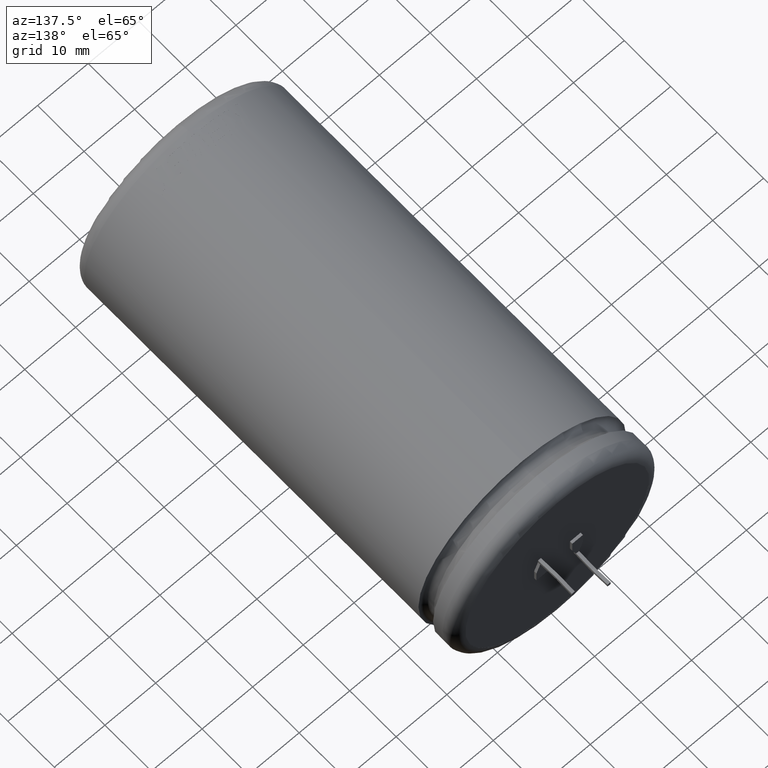
[diagram: clean part render]
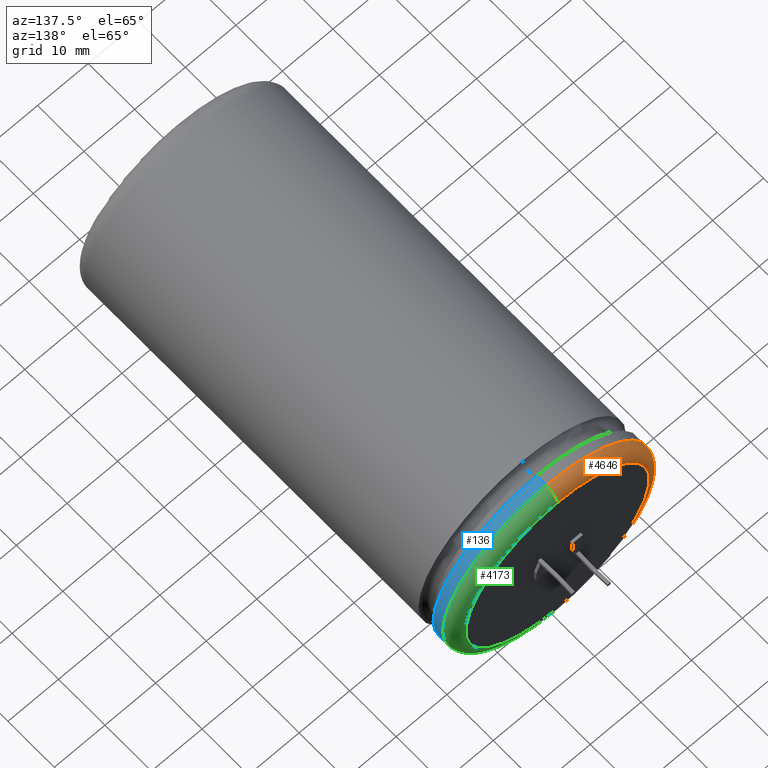
[diagram: same view with three faces highlighted in distinct colors, each labeled with its STEP entity id]
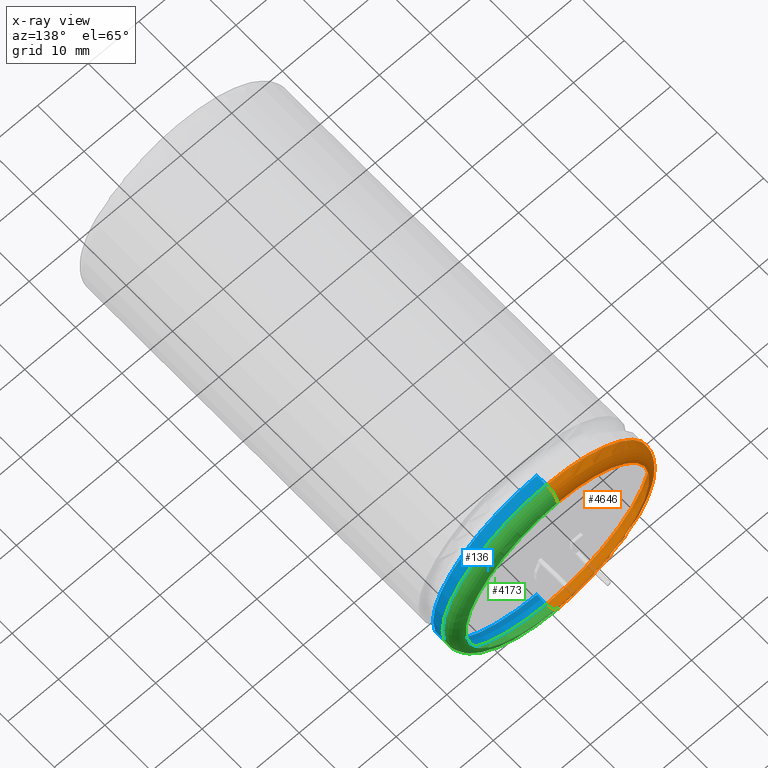
[diagram: x-ray of the same camera — body ghosted, the three highlighted faces saturated]
A machine part, auxiliary view with three faces highlighted in distinct colors.
The next image is the same camera in x-ray (body ghosted, the three faces saturated) — at least one of them is partly hidden behind the body in this view.
Their STEP definitions:

[orange] entity #4646 — the highlighted toroidal blend (fillet) surface has major radius 18.1384 mm and minor (blend) radius 2.3616 mm.
#76 = ORIENTED_EDGE ( 'NONE', *, *, #1399, .F. ) ;
#168 = EDGE_LOOP ( 'NONE', ( #76, #2014, #274, #1979 ) ) ;
#274 = ORIENTED_EDGE ( 'NONE', *, *, #2839, .T. ) ;
#482 = EDGE_CURVE ( 'NONE', #1221, #2626, #3344, .T. ) ;
#549 = TOROIDAL_SURFACE ( 'NONE', #698, 18.13839999999999700, 2.361600000000000100 ) ;
#636 = DIRECTION ( 'NONE',  ( 0.0000000000000000000, 0.0000000000000000000, 1.000000000000000000 ) ) ;
#679 = CIRCLE ( 'NONE', #2986, 2.361599999999998400 ) ;
#698 = AXIS2_PLACEMENT_3D ( 'NONE', #3872, #1421, #636 ) ;
#738 = VERTEX_POINT ( 'NONE', #2123 ) ;
#796 = CIRCLE ( 'NONE', #2286, 20.50000000000000000 ) ;
#1148 = CARTESIAN_POINT ( 'NONE',  ( 2.365919644208754400E-015, 82.00000000000000000, -18.13839999999999700 ) ) ;
#1221 = VERTEX_POINT ( 'NONE', #1148 ) ;
#1251 = CARTESIAN_POINT ( 'NONE',  ( 0.0000000000000000000, 82.00000000000000000, 18.13839999999999700 ) ) ;
#1344 = CARTESIAN_POINT ( 'NONE',  ( 2.221313350165435200E-015, 79.63840000000000400, -18.13839999999999700 ) ) ;
#1399 = EDGE_CURVE ( 'NONE', #738, #1221, #679, .T. ) ;
#1421 = DIRECTION ( 'NONE',  ( 0.0000000000000000000, 1.000000000000000000, 0.0000000000000000000 ) ) ;
#1429 = DIRECTION ( 'NONE',  ( 0.0000000000000000000, 0.0000000000000000000, 1.000000000000000000 ) ) ;
#1443 = CARTESIAN_POINT ( 'NONE',  ( 0.0000000000000000000, 82.00000000000000000, 0.0000000000000000000 ) ) ;
#1710 = AXIS2_PLACEMENT_3D ( 'NONE', #4793, #3664, #2936 ) ;
#1768 = CIRCLE ( 'NONE', #1710, 2.361599999999998400 ) ;
#1874 = EDGE_CURVE ( 'NONE', #4700, #738, #796, .T. ) ;
#1979 = ORIENTED_EDGE ( 'NONE', *, *, #482, .F. ) ;
#2010 = DIRECTION ( 'NONE',  ( 0.0000000000000000000, 0.0000000000000000000, 1.000000000000000000 ) ) ;
#2014 = ORIENTED_EDGE ( 'NONE', *, *, #1874, .F. ) ;
#2066 = FACE_OUTER_BOUND ( 'NONE', #168, .T. ) ;
#2123 = CARTESIAN_POINT ( 'NONE',  ( 0.0000000000000000000, 79.63840000000000400, -20.50000000000000000 ) ) ;
#2286 = AXIS2_PLACEMENT_3D ( 'NONE', #3102, #2754, #2010 ) ;
#2626 = VERTEX_POINT ( 'NONE', #1251 ) ;
#2754 = DIRECTION ( 'NONE',  ( -0.0000000000000000000, -1.000000000000000000, -0.0000000000000000000 ) ) ;
#2839 = EDGE_CURVE ( 'NONE', #4700, #2626, #1768, .T. ) ;
#2936 = DIRECTION ( 'NONE',  ( 0.0000000000000000000, 0.0000000000000000000, 1.000000000000000000 ) ) ;
#2986 = AXIS2_PLACEMENT_3D ( 'NONE', #1344, #4458, #3612 ) ;
#3102 = CARTESIAN_POINT ( 'NONE',  ( 0.0000000000000000000, 79.63840000000000400, 0.0000000000000000000 ) ) ;
#3344 = CIRCLE ( 'NONE', #3616, 18.13839999999999700 ) ;
#3612 = DIRECTION ( 'NONE',  ( 1.224646799147353700E-016, 0.0000000000000000000, -1.000000000000000000 ) ) ;
#3616 = AXIS2_PLACEMENT_3D ( 'NONE', #1443, #4027, #1429 ) ;
#3664 = DIRECTION ( 'NONE',  ( -1.000000000000000000, 0.0000000000000000000, 0.0000000000000000000 ) ) ;
#3872 = CARTESIAN_POINT ( 'NONE',  ( 0.0000000000000000000, 79.63840000000000400, 0.0000000000000000000 ) ) ;
#4027 = DIRECTION ( 'NONE',  ( 0.0000000000000000000, 1.000000000000000000, 0.0000000000000000000 ) ) ;
#4422 = CARTESIAN_POINT ( 'NONE',  ( 2.510525938252074500E-015, 79.63840000000000400, 20.50000000000000000 ) ) ;
#4458 = DIRECTION ( 'NONE',  ( 1.000000000000000000, -0.0000000000000000000, 1.224646799147353200E-016 ) ) ;
#4646 = ADVANCED_FACE ( 'NONE', ( #2066 ), #549, .T. ) ;
#4700 = VERTEX_POINT ( 'NONE', #4422 ) ;
#4793 = CARTESIAN_POINT ( 'NONE',  ( 0.0000000000000000000, 79.63840000000000400, 18.13839999999999700 ) ) ;

[blue] entity #136 — the highlighted cylindrical surface (partial cylindrical patch) has radius 20.5 mm, axis along (-0, -1, -0).
#6 = DIRECTION ( 'NONE',  ( -0.0000000000000000000, -1.000000000000000000, -0.0000000000000000000 ) ) ;
#14 = VECTOR ( 'NONE', #3630, 1000.000000000000000 ) ;
#136 = ADVANCED_FACE ( 'NONE', ( #1123 ), #269, .T. ) ;
#174 = AXIS2_PLACEMENT_3D ( 'NONE', #594, #4654, #2811 ) ;
#269 = CYLINDRICAL_SURFACE ( 'NONE', #4331, 20.50000000000000000 ) ;
#285 = CARTESIAN_POINT ( 'NONE',  ( 0.0000000000000000000, 82.00000000000000000, -20.50000000000000000 ) ) ;
#324 = CARTESIAN_POINT ( 'NONE',  ( 2.510525938252074500E-015, 77.57686000000002500, 20.50000000000000000 ) ) ;
#466 = CARTESIAN_POINT ( 'NONE',  ( 0.0000000000000000000, 77.57686000000002500, -20.50000000000000000 ) ) ;
#579 = LINE ( 'NONE', #2236, #2520 ) ;
#594 = CARTESIAN_POINT ( 'NONE',  ( 0.0000000000000000000, 77.57686000000002500, 0.0000000000000000000 ) ) ;
#738 = VERTEX_POINT ( 'NONE', #2123 ) ;
#1123 = FACE_OUTER_BOUND ( 'NONE', #1532, .T. ) ;
#1369 = EDGE_CURVE ( 'NONE', #738, #4700, #2162, .T. ) ;
#1388 = ORIENTED_EDGE ( 'NONE', *, *, #2698, .T. ) ;
#1407 = AXIS2_PLACEMENT_3D ( 'NONE', #4661, #2410, #2788 ) ;
#1457 = ORIENTED_EDGE ( 'NONE', *, *, #1369, .T. ) ;
#1532 = EDGE_LOOP ( 'NONE', ( #1457, #4152, #1388, #4348 ) ) ;
#1572 = EDGE_CURVE ( 'NONE', #738, #3483, #3021, .T. ) ;
#1788 = VERTEX_POINT ( 'NONE', #324 ) ;
#2123 = CARTESIAN_POINT ( 'NONE',  ( 0.0000000000000000000, 79.63840000000000400, -20.50000000000000000 ) ) ;
#2162 = CIRCLE ( 'NONE', #1407, 20.50000000000000000 ) ;
#2236 = CARTESIAN_POINT ( 'NONE',  ( 2.510525938252074500E-015, 82.00000000000000000, 20.50000000000000000 ) ) ;
#2410 = DIRECTION ( 'NONE',  ( -0.0000000000000000000, -1.000000000000000000, -0.0000000000000000000 ) ) ;
#2520 = VECTOR ( 'NONE', #2992, 1000.000000000000000 ) ;
#2698 = EDGE_CURVE ( 'NONE', #1788, #3483, #4797, .T. ) ;
#2788 = DIRECTION ( 'NONE',  ( 0.0000000000000000000, 0.0000000000000000000, 1.000000000000000000 ) ) ;
#2811 = DIRECTION ( 'NONE',  ( 0.0000000000000000000, 0.0000000000000000000, 1.000000000000000000 ) ) ;
#2947 = DIRECTION ( 'NONE',  ( 0.0000000000000000000, 0.0000000000000000000, -1.000000000000000000 ) ) ;
#2992 = DIRECTION ( 'NONE',  ( -0.0000000000000000000, -1.000000000000000000, -0.0000000000000000000 ) ) ;
#3021 = LINE ( 'NONE', #285, #14 ) ;
#3483 = VERTEX_POINT ( 'NONE', #466 ) ;
#3630 = DIRECTION ( 'NONE',  ( -0.0000000000000000000, -1.000000000000000000, -0.0000000000000000000 ) ) ;
#3930 = CARTESIAN_POINT ( 'NONE',  ( 0.0000000000000000000, 82.00000000000000000, 0.0000000000000000000 ) ) ;
#4017 = EDGE_CURVE ( 'NONE', #4700, #1788, #579, .T. ) ;
#4152 = ORIENTED_EDGE ( 'NONE', *, *, #4017, .T. ) ;
#4331 = AXIS2_PLACEMENT_3D ( 'NONE', #3930, #6, #2947 ) ;
#4348 = ORIENTED_EDGE ( 'NONE', *, *, #1572, .F. ) ;
#4422 = CARTESIAN_POINT ( 'NONE',  ( 2.510525938252074500E-015, 79.63840000000000400, 20.50000000000000000 ) ) ;
#4654 = DIRECTION ( 'NONE',  ( -0.0000000000000000000, 1.000000000000000000, -0.0000000000000000000 ) ) ;
#4661 = CARTESIAN_POINT ( 'NONE',  ( 0.0000000000000000000, 79.63840000000000400, 0.0000000000000000000 ) ) ;
#4700 = VERTEX_POINT ( 'NONE', #4422 ) ;
#4797 = CIRCLE ( 'NONE', #174, 20.50000000000000000 ) ;

[green] entity #4173 — the highlighted toroidal blend (fillet) surface has major radius 18.1384 mm and minor (blend) radius 2.3616 mm.
#186 = AXIS2_PLACEMENT_3D ( 'NONE', #4621, #1552, #1228 ) ;
#679 = CIRCLE ( 'NONE', #2986, 2.361599999999998400 ) ;
#694 = EDGE_CURVE ( 'NONE', #2626, #1221, #1005, .T. ) ;
#738 = VERTEX_POINT ( 'NONE', #2123 ) ;
#804 = ORIENTED_EDGE ( 'NONE', *, *, #2839, .F. ) ;
#992 = ORIENTED_EDGE ( 'NONE', *, *, #694, .F. ) ;
#1005 = CIRCLE ( 'NONE', #4536, 18.13839999999999700 ) ;
#1115 = DIRECTION ( 'NONE',  ( 0.0000000000000000000, 0.0000000000000000000, 1.000000000000000000 ) ) ;
#1148 = CARTESIAN_POINT ( 'NONE',  ( 2.365919644208754400E-015, 82.00000000000000000, -18.13839999999999700 ) ) ;
#1221 = VERTEX_POINT ( 'NONE', #1148 ) ;
#1228 = DIRECTION ( 'NONE',  ( 0.0000000000000000000, 0.0000000000000000000, 1.000000000000000000 ) ) ;
#1251 = CARTESIAN_POINT ( 'NONE',  ( 0.0000000000000000000, 82.00000000000000000, 18.13839999999999700 ) ) ;
#1344 = CARTESIAN_POINT ( 'NONE',  ( 2.221313350165435200E-015, 79.63840000000000400, -18.13839999999999700 ) ) ;
#1369 = EDGE_CURVE ( 'NONE', #738, #4700, #2162, .T. ) ;
#1399 = EDGE_CURVE ( 'NONE', #738, #1221, #679, .T. ) ;
#1407 = AXIS2_PLACEMENT_3D ( 'NONE', #4661, #2410, #2788 ) ;
#1552 = DIRECTION ( 'NONE',  ( 0.0000000000000000000, 1.000000000000000000, 0.0000000000000000000 ) ) ;
#1710 = AXIS2_PLACEMENT_3D ( 'NONE', #4793, #3664, #2936 ) ;
#1768 = CIRCLE ( 'NONE', #1710, 2.361599999999998400 ) ;
#2123 = CARTESIAN_POINT ( 'NONE',  ( 0.0000000000000000000, 79.63840000000000400, -20.50000000000000000 ) ) ;
#2162 = CIRCLE ( 'NONE', #1407, 20.50000000000000000 ) ;
#2172 = CARTESIAN_POINT ( 'NONE',  ( 0.0000000000000000000, 82.00000000000000000, 0.0000000000000000000 ) ) ;
#2410 = DIRECTION ( 'NONE',  ( -0.0000000000000000000, -1.000000000000000000, -0.0000000000000000000 ) ) ;
#2514 = FACE_OUTER_BOUND ( 'NONE', #3421, .T. ) ;
#2626 = VERTEX_POINT ( 'NONE', #1251 ) ;
#2788 = DIRECTION ( 'NONE',  ( 0.0000000000000000000, 0.0000000000000000000, 1.000000000000000000 ) ) ;
#2839 = EDGE_CURVE ( 'NONE', #4700, #2626, #1768, .T. ) ;
#2897 = DIRECTION ( 'NONE',  ( 0.0000000000000000000, 1.000000000000000000, 0.0000000000000000000 ) ) ;
#2936 = DIRECTION ( 'NONE',  ( 0.0000000000000000000, 0.0000000000000000000, 1.000000000000000000 ) ) ;
#2986 = AXIS2_PLACEMENT_3D ( 'NONE', #1344, #4458, #3612 ) ;
#3421 = EDGE_LOOP ( 'NONE', ( #4471, #3763, #992, #804 ) ) ;
#3612 = DIRECTION ( 'NONE',  ( 1.224646799147353700E-016, 0.0000000000000000000, -1.000000000000000000 ) ) ;
#3664 = DIRECTION ( 'NONE',  ( -1.000000000000000000, 0.0000000000000000000, 0.0000000000000000000 ) ) ;
#3763 = ORIENTED_EDGE ( 'NONE', *, *, #1399, .T. ) ;
#3935 = TOROIDAL_SURFACE ( 'NONE', #186, 18.13839999999999700, 2.361600000000000100 ) ;
#4173 = ADVANCED_FACE ( 'NONE', ( #2514 ), #3935, .T. ) ;
#4422 = CARTESIAN_POINT ( 'NONE',  ( 2.510525938252074500E-015, 79.63840000000000400, 20.50000000000000000 ) ) ;
#4458 = DIRECTION ( 'NONE',  ( 1.000000000000000000, -0.0000000000000000000, 1.224646799147353200E-016 ) ) ;
#4471 = ORIENTED_EDGE ( 'NONE', *, *, #1369, .F. ) ;
#4536 = AXIS2_PLACEMENT_3D ( 'NONE', #2172, #2897, #1115 ) ;
#4621 = CARTESIAN_POINT ( 'NONE',  ( 0.0000000000000000000, 79.63840000000000400, 0.0000000000000000000 ) ) ;
#4661 = CARTESIAN_POINT ( 'NONE',  ( 0.0000000000000000000, 79.63840000000000400, 0.0000000000000000000 ) ) ;
#4700 = VERTEX_POINT ( 'NONE', #4422 ) ;
#4793 = CARTESIAN_POINT ( 'NONE',  ( 0.0000000000000000000, 79.63840000000000400, 18.13839999999999700 ) ) ;